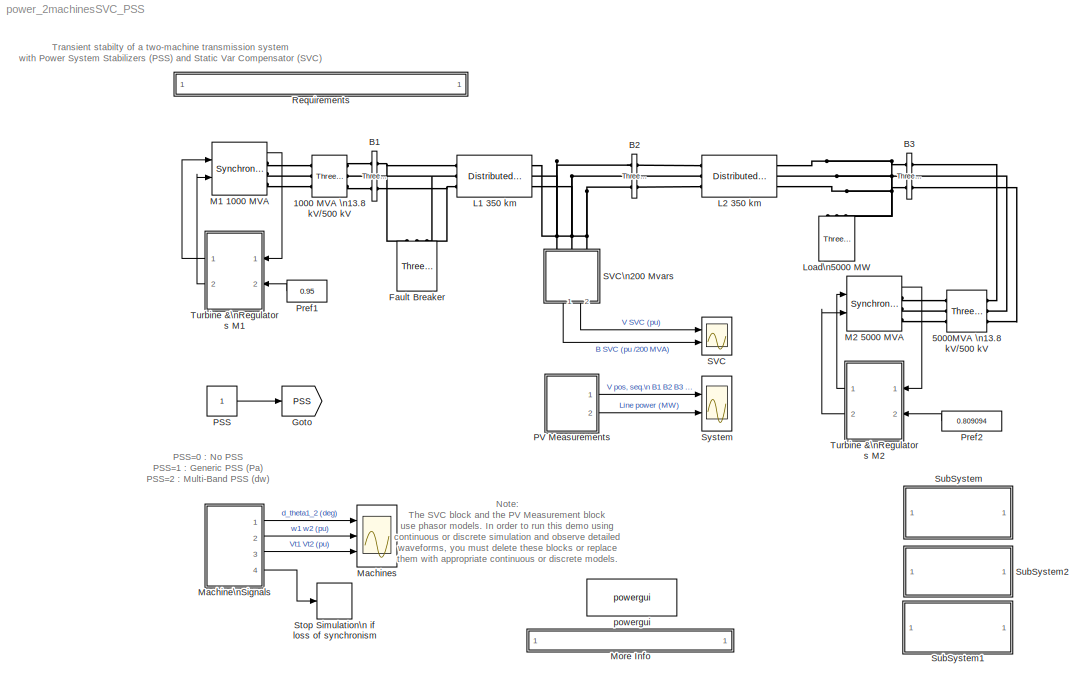
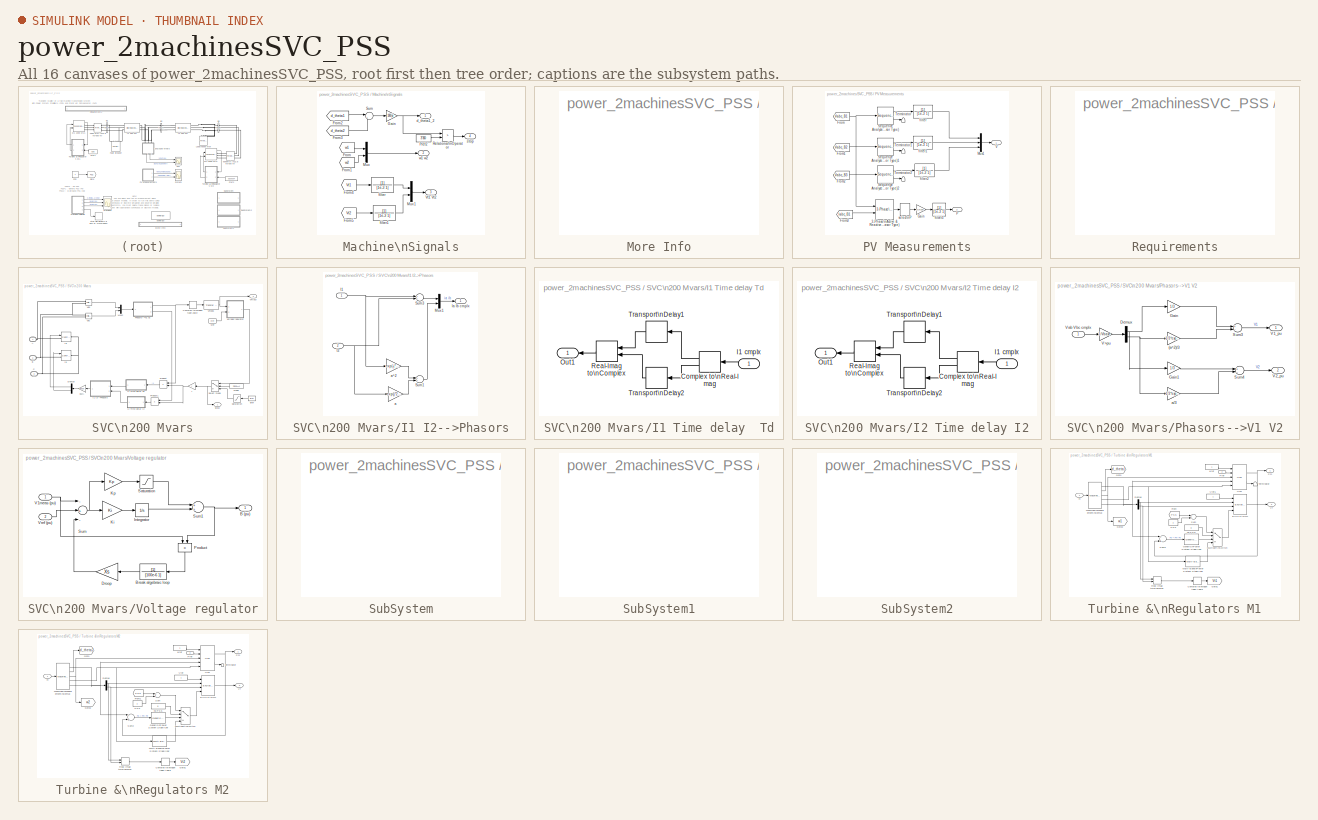
[diagram: thumbnail index - all 16 canvases of the model, root first then tree order]
MODEL power_2machinesSVC_PSS
KIND model
BLOCK [Reference] 1000 MVA \n13.8 kV//500 kV  REF=powerlib/Elements/Three-Phase\nTransformer\n(Two Windings)
  AttributesFormatString = \\n
  DataFile = 'hysteresis'
  Hysteresis = off
  InitialFluxes = [ 0.8 , -0.8 , 0.7 ]
  Lm = 500
  Measurements = None
  NominalPower = [ 1000e6 60 ]
  Ports = [0, 0, 0, 0, 0, 3, 3]
  Rm = 500
  Saturation = [ 0,0  ;  0.005,1.2  ;  1.0,1.4 ]
  SetInitialFlux = off
  SetSaturation = off
  ShowPortLabels = on
  SourceBlock = powerlib/Elements/Three-Phase\nTransformer\n(Two Windings)
  SourceType = Three-Phase Transformer (Two Windings)
  TransfoNumber = 0
  Winding1 = [ 13.8e3 0.002  0.0]
  Winding1Connection = Delta (D1)
  Winding2 = [ 500e3 0.002 0.12]
  Winding2Connection = Yg
BLOCK [Reference] 5000MVA \n13.8 kV//500 kV  REF=powerlib/Elements/Three-Phase\nTransformer\n(Two Windings)
  AttributesFormatString = \\n
  DataFile = 'hysteresis'
  Hysteresis = off
  InitialFluxes = [ 0.8 , -0.8 , 0.7 ]
  Lm = 500
  Measurements = None
  NominalPower = [ 5000e6 60 ]
  Ports = [0, 0, 0, 0, 0, 3, 3]
  Rm = 500
  Saturation = [ 0,0  ;  0.005,1.2  ;  1.0,1.4 ]
  SetInitialFlux = off
  SetSaturation = off
  ShowPortLabels = on
  SourceBlock = powerlib/Elements/Three-Phase\nTransformer\n(Two Windings)
  SourceType = Three-Phase Transformer (Two Windings)
  TransfoNumber = 0
  Winding1 = [ 13.8e3 0.002  0.0]
  Winding1Connection = Delta (D1)
  Winding2 = [ 500e3 0.002 0.12]
  Winding2Connection = Yg
BLOCK [Reference] B1  REF=powerlib/Measurements/Three-Phase\nV-I Measurement
  CurrentMeasurement = yes
  Ipu = on
  LabelI = Iabc_B1
  LabelV = Vabc_B1
  OutputType = Complex
  PSBequivalent = 0
  Pbase = 100e6
  PhasorSimulation = on
  Ports = [0, 0, 0, 0, 0, 3, 3]
  SetLabelI = on
  SetLabelV = on
  ShowPortLabels = on
  SourceBlock = powerlib/Measurements/Three-Phase\nV-I Measurement
  SourceType = Three-Phase VI Measurement
  Vbase = 500e3
  VoltageMeasurement = phase-to-ground
  Vpu = on
BLOCK [Reference] B2  REF=powerlib/Measurements/Three-Phase\nV-I Measurement
  CurrentMeasurement = no
  Ipu = on
  LabelI = Iabc_B2
  LabelV = Vabc_B2
  OutputType = Complex
  PSBequivalent = 0
  Pbase = 100e6
  PhasorSimulation = on
  Ports = [0, 0, 0, 0, 0, 3, 3]
  SetLabelI = on
  SetLabelV = on
  ShowPortLabels = on
  SourceBlock = powerlib/Measurements/Three-Phase\nV-I Measurement
  SourceType = Three-Phase VI Measurement
  Vbase = 500e3
  VoltageMeasurement = phase-to-ground
  Vpu = on
BLOCK [Reference] B3  REF=powerlib/Measurements/Three-Phase\nV-I Measurement
  CurrentMeasurement = no
  Ipu = off
  LabelI = I1
  LabelV = Vabc_B3
  OutputType = Complex
  PSBequivalent = 0
  Pbase = 0
  PhasorSimulation = on
  Ports = [0, 0, 0, 0, 0, 3, 3]
  SetLabelI = off
  SetLabelV = on
  ShowPortLabels = on
  SourceBlock = powerlib/Measurements/Three-Phase\nV-I Measurement
  SourceType = Three-Phase VI Measurement
  Vbase = 500e3
  VoltageMeasurement = phase-to-ground
  Vpu = on
BLOCK [Reference] Fault Breaker  REF=powerlib/Elements/Three-Phase Fault
  External = off
  FaultA = on
  FaultB = off
  FaultC = off
  FaultResistance = 0.001
  GroundFault = on
  GroundResistance = 0.001
  InitialStates = [0 0 1]
  Measurements = None
  Ports = [0, 0, 0, 0, 0, 3]
  ShowPortLabels = on
  SnubberCapacitance = inf
  SnubberResistance = 1e6
  SourceBlock = powerlib/Elements/Three-Phase Fault
  SourceType = Three-Phase Fault
  SwitchStatus = [1 0]
  SwitchTimes = [ 0.1 0.2]
BLOCK [Goto] Goto
  DialogController = Simulink.DDGSource
  GotoTag = PSS
  TagVisibility = global
BLOCK [Reference] L1 350 km  REF=powerlib/Elements/Distributed Parameters Line
  AttributesFormatString = \\n
  Capacitance = [13.33e-9  8.297e-9]
  Frequency = 60
  Inductance = [0.8737e-3  3.220e-3]
  Length = 350
  Measurements = None
  Phases = 3
  Ports = [0, 0, 0, 0, 0, 3, 3]
  Resistance = [0.01755  0.2758]
  ShowPortLabels = on
  SourceBlock = powerlib/Elements/Distributed Parameters Line
  SourceType = Distributed Parameters Line
  x1 = [0 -2.08119625850685e-008 487443.70964158 -112421.385718226;0.000361814960995258 -1.32408804911861e-008 498203.083338567 -45095.3864412803;0.000723629921990516 -5.4238303493389e-009 499707.631423288 23068.3233023193;0.00108544488298577 2.49397509835117e-009 491929.404791019 90803.5063738243;0.00144725984398103 1.03654514377148e-008 475012.894982382 156851.886122394;0.00180907480497629 1.8044374883...<+44ch>
  x2 = [0 -2.35529805500378e-008 400923.037995999 -306678.651465529;0.000361814960995258 -1.81656675870373e-008 438900.84018104 -249313.294277769;0.000723629921990516 -1.2440901703188e-008 468725.439640532 -187316.590680232;0.00108544488298577 -6.48502850673286e-009 489842.802334574 -121840.216966217;0.00144725984398103 -4.08686750512464e-010 501860.643438643 -54100.489213872;0.00180907480497629 5.675246...<+48ch>
  x3 = [0 -2.28639731612497e-011 13.1153359399388 -184.480419316447;0.000361814960995258 -1.5497855368557e-011 38.0787449775036 -180.983668896994;0.000723629921990516 -7.84384303326341e-012 62.3347875693628 -174.124891323704;0.00108544488298577 -4.41202400649915e-014 85.4328734808534 -164.031498072894;0.00144725984398103 7.75642214887949e-012 106.943923157398 -150.890988173566;0.00180907480497629 1.54128...<+50ch>
  x4 = [0 -8.91581395814244e-011 3023.50620810601 -2208.10451815775;0.000361814960995258 -8.08885983149858e-011 3295.677846705 -1776.46366568912;0.000723629921990516 -7.11164371401972e-011 3506.62761662129 -1311.82249270399;0.00108544488298577 -6.00231877467494e-011 3652.43682806992 -822.812364948711;0.00144725984398103 -4.7814922903044e-011 3730.39686910176 -318.517335907422;0.00180907480497629 -3.47184...<+49ch>
  x5 = 0.00180907480497629
BLOCK [Reference] L2 350 km  REF=powerlib/Elements/Distributed Parameters Line
  AttributesFormatString = \\n
  Capacitance = [13.33e-9  8.297e-9]
  Frequency = 60
  Inductance = [0.8737e-3  3.220e-3]
  Length = 350
  Measurements = None
  Phases = 3
  Ports = [0, 0, 0, 0, 0, 3, 3]
  Resistance = [0.01755  0.2758]
  ShowPortLabels = on
  SourceBlock = powerlib/Elements/Distributed Parameters Line
  SourceType = Distributed Parameters Line
  x1 = [0 -2.35529805500378e-008 400923.037995999 -306678.651465529;0.000361814960995258 -1.81656675870373e-008 438900.84018104 -249313.294277769;0.000723629921990516 -1.2440901703188e-008 468725.439640532 -187316.590680232;0.00108544488298577 -6.48502850673286e-009 489842.802334574 -121840.216966217;0.00144725984398103 -4.08686750512464e-010 501860.643438643 -54100.489213872;0.00180907480497629 5.675246...<+48ch>
  x2 = [0 -1.22208025570452e-008 237673.529594385 -435607.401325092;0.000361814960995258 -1.12033805949038e-008 294699.1687201 -399242.932774381;0.000723629921990516 -9.97784002181595e-009 346250.354744666 -355461.963115335;0.00108544488298577 -8.56694698408616e-009 391369.451610182 -305077.785667245;0.00144725984398103 -6.9969108117215e-009 429218.308395391 -249026.357656179;0.00180907480497629 -5.29689...<+50ch>
  x3 = [0 2.19231358823738e-011 52.7160632692662 -144.994726298769;0.000361814960995258 2.8947525098237e-011 71.9423984147416 -136.479806556214;0.000723629921990516 3.54341731686708e-011 89.8323019448307 -125.429581731223;0.00108544488298577 4.12625814482279e-011 106.053443645353 -112.049325350098;0.00144725984398103 4.63244790248479e-011 120.30449290899 -96.5875945647238;0.00180907480497629 5.0525834004...<+45ch>
  x4 = [0 -9.73737691565742e-011 1740.3123490764 -3266.29894983194;0.000361814960995258 -9.76379763309758e-011 2168.29428893824 -2999.31609805074;0.000723629921990516 -9.60884202544106e-011 2555.99710128903 -2676.61671545742;0.00108544488298577 -9.275388611859e-011 2896.21865904908 -2304.19539865519;0.00144725984398103 -8.76963176026223e-011 3182.63886647449 -1888.97039937023;0.00180907480497629 -8.10096...<+50ch>
  x5 = 0.00180907480497629
BLOCK [Reference] Load\n5000 MW  REF=powerlib/Elements/Three-Phase\nParallel RLC Load
  ActivePower = 5000e6
  AttributesFormatString = \\n
  CapacitivePower = 0
  Configuration = Y (grounded)
  InductivePower = 0
  LConnTagsString = A|B|C
  LeftPortType = p1
  Measurements = None
  NominalFrequency = 60
  NominalVoltage = 500e3
  PhysicalDomain = powersysdomain
  Ports = [0, 0, 0, 0, 0, 3]
  RightPortType = p1
  SourceBlock = powerlib/Elements/Three-Phase\nParallel RLC Load
  SourceType = Three-Phase Parallel RLC Load
  SubClassName = unknown
BLOCK [Reference] M1 1000 MVA  REF=powerlib/Machines/Synchronous Machine\npu Standard
  AttributesFormatString = \\n\\n
  InitialConditions = [0 -16.6861 0.950218 0.950218 0.950218 48.1093 -71.8907 168.109 1.44424]
  LoadFlowParameters = [1 950000000 0 0]
  Mechanical = [ 3.7 0  32]
  NominalParameters = [1000E6  13800   60 ]
  Ports = [2, 1, 0, 0, 0, 0, 3]
  PresetModel = No
  Reactances1 = [ 31 32 33 34 35 36 37 ]
  Reactances2 = [ 1.305, 0.296, 0.252, 0.474, 0.243, 0.18 ]
  RotorType = Salient-pole
  Saturation = [0.6404,0.7127,0.8441,0.9214,0.9956,1.082,1.19,1.316,1.457;0.7,0.7698,0.8872,0.9466,0.9969,1.046,1.1,1.151,1.201]
  SetSaturation = off
  ShowDetailedParameters = on
  ShowPortLabels = on
  SourceBlock = powerlib/Machines/Synchronous Machine\npu Standard
  SourceType = Synchronous Machine
  StatorResistance = 2.8544e-3
  TimeConstants1 = []
  TimeConstants2 = []
  TimeConstants3 = []
  TimeConstants4 = []
  TimeConstants5 = [ 1.01, 0.053, 0.1 ]
  TimeConstants6 = []
  TimeConstants7 = []
  TimeConstants8 = []
  Units = 0.5
  dAxisTimeConstants = Short-circuit
  qAxisTimeConstants = Open-circuit
BLOCK [Reference] M2 5000 MVA  REF=powerlib/Machines/Synchronous Machine\npu Standard
  AttributesFormatString = \\n\\n
  InitialConditions = [0 -69.7487 0.812764 0.812764 0.812764 -5.44703 -125.447 114.553 1.40021]
  LoadFlowParameters = [2 4000000000 0 0]
  Mechanical = [ 3.7 0  32]
  NominalParameters = [5000E6  13800   60 ]
  Ports = [2, 1, 0, 0, 0, 0, 3]
  PresetModel = No
  Reactances1 = [ 31 32 33 34 35 36 37 ]
  Reactances2 = [ 1.305, 0.296, 0.252, 0.474, 0.243, 0.18 ]
  RotorType = Salient-pole
  Saturation = [0.6404,0.7127,0.8441,0.9214,0.9956,1.082,1.19,1.316,1.457;0.7,0.7698,0.8872,0.9466,0.9969,1.046,1.1,1.151,1.201]
  SetSaturation = off
  ShowDetailedParameters = on
  ShowPortLabels = on
  SourceBlock = powerlib/Machines/Synchronous Machine\npu Standard
  SourceType = Synchronous Machine
  StatorResistance = 2.8544e-3
  TimeConstants1 = []
  TimeConstants2 = []
  TimeConstants3 = []
  TimeConstants4 = []
  TimeConstants5 = [ 1.01, 0.053, 0.1 ]
  TimeConstants6 = []
  TimeConstants7 = []
  TimeConstants8 = []
  Units = 0.5
  dAxisTimeConstants = Short-circuit
  qAxisTimeConstants = Open-circuit
BLOCK [SubSystem] Machine\nSignals
  MinAlgLoopOccurrences = off
  Ports = [0, 4]
  RTWSystemCode = Auto
  TreatAsAtomicUnit = off
BLOCK [TransferFcn] Machine\nSignals/ filter
  Denominator = [1e-3 1]
BLOCK [TransferFcn] Machine\nSignals/ filter1
  Denominator = [1e-3 1]
BLOCK [From] Machine\nSignals/From
  CloseFcn = tagdialog Close
  DialogController = Simulink.DDGSource
  GotoTag = w1
BLOCK [From] Machine\nSignals/From1
  CloseFcn = tagdialog Close
  DialogController = Simulink.DDGSource
  GotoTag = w2
BLOCK [From] Machine\nSignals/From2
  CloseFcn = tagdialog Close
  DialogController = Simulink.DDGSource
  GotoTag = d_theta1
BLOCK [From] Machine\nSignals/From3
  CloseFcn = tagdialog Close
  DialogController = Simulink.DDGSource
  GotoTag = d_theta2
BLOCK [From] Machine\nSignals/From4
  CloseFcn = tagdialog Close
  DialogController = Simulink.DDGSource
  GotoTag = Vt1
BLOCK [From] Machine\nSignals/From5
  CloseFcn = tagdialog Close
  DialogController = Simulink.DDGSource
  GotoTag = Vt2
BLOCK [Gain] Machine\nSignals/Gain
  Gain = 180/pi
BLOCK [Mux] Machine\nSignals/Mux
  DisplayOption = bar
  Inputs = 2
  Ports = [2, 1]
BLOCK [Mux] Machine\nSignals/Mux1
  DisplayOption = bar
  Inputs = 2
  Ports = [2, 1]
BLOCK [Constant] Machine\nSignals/Pref2
  Value = 3*360
BLOCK [RelationalOperator] Machine\nSignals/Relational\nOperator
  Operator = >
BLOCK [Sum] Machine\nSignals/Sum
  IconShape = round
  Inputs = |+-
  Ports = [2, 1]
BLOCK [Outport] Machine\nSignals/Vt1 Vt2
  IconDisplay = Port number
  Port = 3
BLOCK [Outport] Machine\nSignals/d_theta1_2
  IconDisplay = Port number
BLOCK [Outport] Machine\nSignals/stop
  IconDisplay = Port number
  Port = 4
BLOCK [Outport] Machine\nSignals/w1 w2
  IconDisplay = Port number
  Port = 2
BLOCK [Scope] Machines
  DataFormat = StructureWithTime
  LimitDataPoints = off
  NumInputPorts = 3
  Ports = [3]
  SaveName = mach
  SaveToWorkspace = on
  TimeRange = 50
  YMax = 70~1.005~1.5
  YMin = 30~0.995~0
BLOCK [SubSystem] More Info
  MaskDisplay = disp('? : Double click here for more info')
  MaskIconFrame = off
  MaskIconOpaque = on
  MaskIconRotate = none
  MaskIconUnits = autoscale
  MinAlgLoopOccurrences = off
  OpenFcn = web(which('psb2machines.html'));
  Ports = []
  RTWSystemCode = Auto
  TreatAsAtomicUnit = off
BLOCK [Constant] PSS
BLOCK [SubSystem] PV Measurements
  MinAlgLoopOccurrences = off
  Ports = [0, 2]
  RTWSystemCode = Auto
  TreatAsAtomicUnit = off
BLOCK [TransferFcn] PV Measurements/ filter
  Denominator = [1e-3 1]
BLOCK [TransferFcn] PV Measurements/ filter1
  Denominator = [1e-3 1]
BLOCK [TransferFcn] PV Measurements/ filter2
  Denominator = [1e-3 1]
BLOCK [TransferFcn] PV Measurements/ filter3
  Denominator = [1e-3 1]
BLOCK [Reference] PV Measurements/3-Phase\nActive & Reactive Power\n(Phasor Type)  REF=powerlib_extras/Phasor\nLibrary/3-Phase\nActive & Reactive Power\n(Phasor Type)
  Ports = [2, 1]
  ShowPortLabels = on
  SourceBlock = powerlib_extras/Phasor\nLibrary/3-Phase\nActive & Reactive Power\n(Phasor Type)
  SourceType = 3-Phase Active & Reactive Power (Phasor Type)
BLOCK [From] PV Measurements/From
  CloseFcn = tagdialog Close
  DialogController = Simulink.DDGSource
  GotoTag = Vabc_B1
BLOCK [From] PV Measurements/From1
  CloseFcn = tagdialog Close
  DialogController = Simulink.DDGSource
  GotoTag = Vabc_B2
BLOCK [From] PV Measurements/From2
  CloseFcn = tagdialog Close
  DialogController = Simulink.DDGSource
  GotoTag = Vabc_B3
BLOCK [From] PV Measurements/From3
  CloseFcn = tagdialog Close
  DialogController = Simulink.DDGSource
  GotoTag = Iabc_B1
BLOCK [Gain] PV Measurements/Gain
  Gain = 2/3*100
BLOCK [Mux] PV Measurements/Mux1
  DisplayOption = bar
  Inputs = 3
  Ports = [3, 1]
BLOCK [Outport] PV Measurements/P
  IconDisplay = Port number
  Port = 2
BLOCK [Reference] PV Measurements/Sequence Analyzer\n(Phasor Type)  REF=powerlib_extras/Phasor\nLibrary/Sequence Analyzer\n(Phasor Type)
  Ports = [1, 2]
  ShowPortLabels = on
  SourceBlock = powerlib_extras/Phasor\nLibrary/Sequence Analyzer\n(Phasor Type)
  SourceType = Sequence Analyzer (Phasor Type)
  seq = Positive
BLOCK [Reference] PV Measurements/Sequence Analyzer\n(Phasor Type)1  REF=powerlib_extras/Phasor\nLibrary/Sequence Analyzer\n(Phasor Type)
  Ports = [1, 2]
  ShowPortLabels = on
  SourceBlock = powerlib_extras/Phasor\nLibrary/Sequence Analyzer\n(Phasor Type)
  SourceType = Sequence Analyzer (Phasor Type)
  seq = Positive
BLOCK [Reference] PV Measurements/Sequence Analyzer\n(Phasor Type)2  REF=powerlib_extras/Phasor\nLibrary/Sequence Analyzer\n(Phasor Type)
  Ports = [1, 2]
  ShowPortLabels = on
  SourceBlock = powerlib_extras/Phasor\nLibrary/Sequence Analyzer\n(Phasor Type)
  SourceType = Sequence Analyzer (Phasor Type)
  seq = Positive
BLOCK [Terminator] PV Measurements/Terminator
BLOCK [Terminator] PV Measurements/Terminator1
BLOCK [Terminator] PV Measurements/Terminator2
BLOCK [Outport] PV Measurements/V
  IconDisplay = Port number
BLOCK [Selector] PV Measurements/select\nP
  InputPortWidth = 2
  Ports = [1, 1]
BLOCK [Constant] Pref1 
  Value = 0.95
BLOCK [Constant] Pref2
  Value = 0.809094
BLOCK [SubSystem] Requirements
  Description = This block is used to popup errors and warnings if the\nControl System Toolbox is not installed.
  InitFcn = Toolboxes = ver;                                                                                               \ninstalledtoolboxes = {Toolboxes.Name};                                                                         \nk = strcmp('Control System Toolbox',installedtoolboxes);                                                       \nif ~any(k)                                                   ...<+391ch>
  LoadFcn = Toolboxes = ver;                                                                                                                              \ninstalledtoolboxes = {Toolboxes.Name};                                                                                                        \nk = strcmp('Control System Toolbox',installedtoolboxes);                                                        ...<+467ch>
  MaskDisplay = disp('This demo requires the Control System Toolbox')
  MaskIconFrame = off
  MaskIconOpaque = on
  MaskIconRotate = none
  MaskIconUnits = autoscale
  MinAlgLoopOccurrences = off
  OpenFcn = Toolboxes = ver;                                                                                                                                           \ninstalledtoolboxes = {Toolboxes.Name};                                                                                                                     \nk = strcmp('Control System Toolbox',installedtoolboxes);                              ...<+540ch>
  Ports = []
  RTWSystemCode = Auto
  TreatAsAtomicUnit = off
BLOCK [Scope] SVC
  DataFormat = StructureWithTime
  LimitDataPoints = off
  NumInputPorts = 2
  Ports = [2]
  SaveName = svc
  SaveToWorkspace = on
  TimeRange = 10
  YMax = 1.1~1
  YMin = 0.5~-1
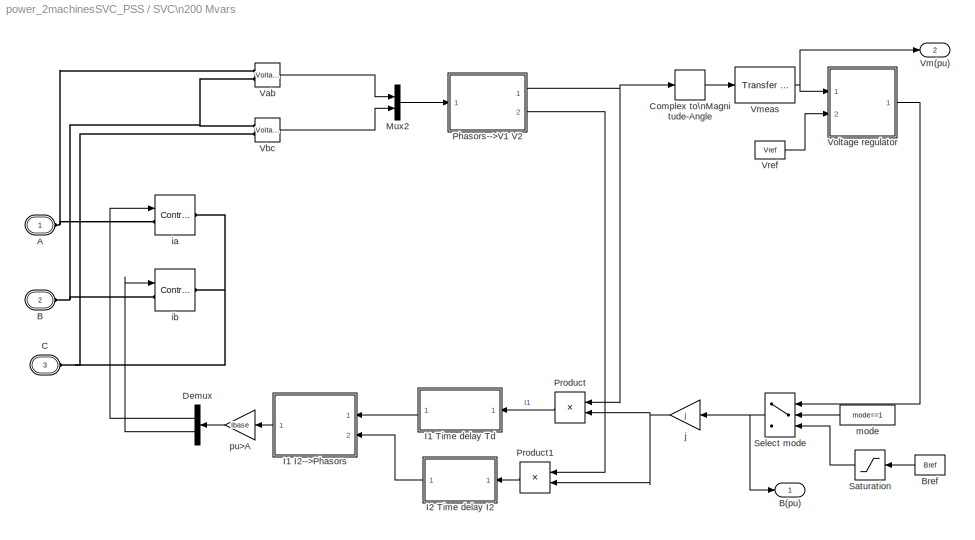
BLOCK [SubSystem] SVC\n200 Mvars
  AncestorBlock = powerlib/Phasor\nElements/Static Var Compensator
  CloseFcn = %3phaseVImeasurement
  LoadFcn = find_system(gcs,'FollowLinks', 'on', 'LookUnderMasks', 'all');
  MaskCallbackString = powericon('psbcallbacks',gcb,'SVCblock');|||||||||
  MaskDescription = This block implements a  phasor model of a three-phase, three-wire Static Var Compensator (SVC).\n\nThe B output signal (SVC susceptance in pu/Pbase)  is the output of the voltage regulator or the reference susceptance Bref in var control mode.\nThe Vm output is the measured positive-sequence voltage (pu).
  MaskDisplay = \n
  MaskEnableString = on,on,on,on,on,on,on,on,on,on
  MaskHelp = web(psbhelp)
  MaskIconFrame = on
  MaskIconOpaque = on
  MaskIconRotate = none
  MaskIconUnits = autoscale
  MaskInitialization = Qc_nom=Qnom(1);\nQl_nom=Qnom(2);\nBmax=Qc_nom/Pbase;\nBmin=Ql_nom/Pbase;\nVbase=Vnom/sqrt(3)*sqrt(2);\nIbase=Pbase/Vnom/sqrt(3)*sqrt(2);\nKp=Kp_Ki(1);\nKi=Kp_Ki(2);;
  MaskPromptString = Mode of operation|Nominal voltage (Vrms Ph-Ph):|Reactive power limits [Qc(var>0)  Ql(var<0)]:|Three-phase base power Pbase (VA):|Reference voltage Vref  (pu):|Droop Xs (pu/Pbase):|Voltage regulator [Kp(puB/puV)  Ki(puB/puV/s)]: |Bref  for var control mode (pu/Pbase):|Time constant of voltage measurement system Tm (s):|Average time delay due to thyristor valves firing Td (s):
  MaskStyleString = popup(Voltage regulation|Var control (Fixed susceptance Bref)),edit,edit,edit,edit,edit,edit,edit,edit,edit
  MaskTabNameString = ,,,,,,,,,
  MaskToolTipString = on,on,on,on,on,on,on,on,on,on
  MaskTunableValueString = on,on,on,on,on,on,on,on,on,on
  MaskType = Static Var Compensator (Phasor Type)
  MaskValueString = Var control (Fixed susceptance Bref)|500e3|[200e6 -200e6]|200e6|1.009|0.03|[0  333]|0.0|8e-3|4e-3
  MaskVarAliasString = ,,,,,,,,,
  MaskVariables = mode=@1;Vnom=@2;Qnom=@3;Pbase=@4;Vref=@5;Xs=@6;Kp_Ki=@7;Bref=@8;Tm=@9;Td=@10;
  MaskVisibilityString = on,on,on,on,off,off,off,on,off,on
  MinAlgLoopOccurrences = off
  Ports = [0, 2, 0, 0, 0, 3]
  RTWSystemCode = Auto
  TreatAsAtomicUnit = off
BLOCK [PMIOPort] SVC\n200 Mvars/A
  Port = 1
  Side = Left
BLOCK [PMIOPort] SVC\n200 Mvars/B
  Port = 2
  Side = Left
BLOCK [Outport] SVC\n200 Mvars/B(pu)
  IconDisplay = Port number
BLOCK [Constant] SVC\n200 Mvars/Bref
  Value = Bref
BLOCK [PMIOPort] SVC\n200 Mvars/C
  Port = 3
  Side = Left
BLOCK [ComplexToMagnitudeAngle] SVC\n200 Mvars/Complex to\nMagnitude-Angle
  Output = Magnitude
  Ports = [1, 1]
BLOCK [Demux] SVC\n200 Mvars/Demux
  Outputs = 2
  Ports = [1, 2]
BLOCK [SubSystem] SVC\n200 Mvars/I1 I2-->Phasors
  MinAlgLoopOccurrences = off
  Ports = [2, 1]
  RTWSystemCode = Auto
  TreatAsAtomicUnit = off
BLOCK [Inport] SVC\n200 Mvars/I1 I2-->Phasors/I1
  IconDisplay = Port number
  LatchInput = off
  Port = 1
BLOCK [Inport] SVC\n200 Mvars/I1 I2-->Phasors/I2
  IconDisplay = Port number
  LatchInput = off
  Port = 2
BLOCK [Outport] SVC\n200 Mvars/I1 I2-->Phasors/Ia Ib cmplx
  IconDisplay = Port number
BLOCK [Mux] SVC\n200 Mvars/I1 I2-->Phasors/Mux1
  DisplayOption = bar
  Inputs = 2
  Ports = [2, 1]
BLOCK [Sum] SVC\n200 Mvars/I1 I2-->Phasors/Sum1
  Ports = [2, 1]
BLOCK [Sum] SVC\n200 Mvars/I1 I2-->Phasors/Sum3
  Ports = [2, 1]
BLOCK [Gain] SVC\n200 Mvars/I1 I2-->Phasors/a
  Gain = exp(j*2*pi/3)
BLOCK [Gain] SVC\n200 Mvars/I1 I2-->Phasors/a^2
  Gain = exp(-j*2*pi/3)
BLOCK [SubSystem] SVC\n200 Mvars/I1 Time delay  Td
  MinAlgLoopOccurrences = off
  Ports = [1, 1]
  RTWSystemCode = Auto
  TreatAsAtomicUnit = off
BLOCK [ComplexToRealImag] SVC\n200 Mvars/I1 Time delay  Td/Complex to\nReal-Imag
  Output = Real and imag
  Ports = [1, 2]
BLOCK [Inport] SVC\n200 Mvars/I1 Time delay  Td/I1 cmplx
  IconDisplay = Port number
  LatchInput = off
  Port = 1
BLOCK [Outport] SVC\n200 Mvars/I1 Time delay  Td/Out1
  IconDisplay = Port number
BLOCK [RealImagToComplex] SVC\n200 Mvars/I1 Time delay  Td/Real-Imag to\nComplex
  Input = Real and imag
  Ports = [2, 1]
BLOCK [TransportDelay] SVC\n200 Mvars/I1 Time delay  Td/Transport\nDelay1
  DelayTime = Td
BLOCK [TransportDelay] SVC\n200 Mvars/I1 Time delay  Td/Transport\nDelay2
  DelayTime = Td
BLOCK [SubSystem] SVC\n200 Mvars/I2 Time delay I2
  MinAlgLoopOccurrences = off
  Ports = [1, 1]
  RTWSystemCode = Auto
  TreatAsAtomicUnit = off
BLOCK [ComplexToRealImag] SVC\n200 Mvars/I2 Time delay I2/Complex to\nReal-Imag
  Output = Real and imag
  Ports = [1, 2]
BLOCK [Inport] SVC\n200 Mvars/I2 Time delay I2/I1 cmplx
  IconDisplay = Port number
  LatchInput = off
  Port = 1
BLOCK [Outport] SVC\n200 Mvars/I2 Time delay I2/Out1
  IconDisplay = Port number
BLOCK [RealImagToComplex] SVC\n200 Mvars/I2 Time delay I2/Real-Imag to\nComplex
  Input = Real and imag
  Ports = [2, 1]
BLOCK [TransportDelay] SVC\n200 Mvars/I2 Time delay I2/Transport\nDelay1
  DelayTime = Td
BLOCK [TransportDelay] SVC\n200 Mvars/I2 Time delay I2/Transport\nDelay2
  DelayTime = Td
BLOCK [Mux] SVC\n200 Mvars/Mux2
  DisplayOption = bar
  Inputs = 2
  Ports = [2, 1]
BLOCK [SubSystem] SVC\n200 Mvars/Phasors-->V1 V2
  MinAlgLoopOccurrences = off
  Ports = [1, 2]
  RTWSystemCode = Auto
  TreatAsAtomicUnit = off
BLOCK [Gain] SVC\n200 Mvars/Phasors-->V1 V2/(a^2)//3
  Gain = 1/3*exp(-j*2*pi/3)
BLOCK [Demux] SVC\n200 Mvars/Phasors-->V1 V2/Demux
  Outputs = 2
  Ports = [1, 2]
BLOCK [Gain] SVC\n200 Mvars/Phasors-->V1 V2/Gain
  Gain = 1/3
BLOCK [Gain] SVC\n200 Mvars/Phasors-->V1 V2/Gain1
  Gain = 1/3
BLOCK [Sum] SVC\n200 Mvars/Phasors-->V1 V2/Sum3
  Inputs = +-
  Ports = [2, 1]
BLOCK [Sum] SVC\n200 Mvars/Phasors-->V1 V2/Sum4
  Inputs = +-
  Ports = [2, 1]
BLOCK [Outport] SVC\n200 Mvars/Phasors-->V1 V2/V1_pu
  IconDisplay = Port number
BLOCK [Outport] SVC\n200 Mvars/Phasors-->V1 V2/V2_pu
  IconDisplay = Port number
  Port = 2
BLOCK [Gain] SVC\n200 Mvars/Phasors-->V1 V2/V>pu
  Gain = 1/Vbase
BLOCK [Inport] SVC\n200 Mvars/Phasors-->V1 V2/Vab Vbc cmplx
  IconDisplay = Port number
  LatchInput = off
  Port = 1
BLOCK [Gain] SVC\n200 Mvars/Phasors-->V1 V2/a//3
  Gain = 1/3*exp(j*2*pi/3)
BLOCK [Product] SVC\n200 Mvars/Product
  Ports = [2, 1]
  RndMeth = Floor
BLOCK [Product] SVC\n200 Mvars/Product1
  Ports = [2, 1]
  RndMeth = Floor
BLOCK [Saturate] SVC\n200 Mvars/Saturation
  LowerLimit = Bmin
  UpperLimit = Bmax
BLOCK [Switch] SVC\n200 Mvars/Select mode
  SaturateOnIntegerOverflow = off
  Threshold = 0.5
BLOCK [Reference] SVC\n200 Mvars/Vab  REF=powerlib/Measurements/Voltage Measurement
  OutputType = Complex
  PSBequivalent = 0
  PhasorSimulation = on
  Ports = [0, 1, 0, 0, 0, 2]
  ShowPortLabels = on
  SourceBlock = powerlib/Measurements/Voltage Measurement
  SourceType = Voltage Measurement
BLOCK [Reference] SVC\n200 Mvars/Vbc  REF=powerlib/Measurements/Voltage Measurement
  OutputType = Complex
  PSBequivalent = 0
  PhasorSimulation = on
  Ports = [0, 1, 0, 0, 0, 2]
  ShowPortLabels = on
  SourceBlock = powerlib/Measurements/Voltage Measurement
  SourceType = Voltage Measurement
BLOCK [Outport] SVC\n200 Mvars/Vm(pu)
  IconDisplay = Port number
  Port = 2
BLOCK [Reference] SVC\n200 Mvars/Vmeas  REF=simulink_extras/Additional\nLinear/Transfer Fcn\n(with initial outputs)
  D = [Tm  1]
  N = [1]
  Ports = [1, 1]
  ShowPortLabels = on
  SourceBlock = simulink_extras/Additional\nLinear/Transfer Fcn\n(with initial outputs)
  SourceType = Transfer Function with Initial Outputs
  U0 = Vref
  Y0 = Vref
BLOCK [SubSystem] SVC\n200 Mvars/Voltage regulator
  MinAlgLoopOccurrences = off
  Ports = [2, 1]
  RTWSystemCode = Auto
  TreatAsAtomicUnit = off
BLOCK [Outport] SVC\n200 Mvars/Voltage regulator/B (pu)
  IconDisplay = Port number
  InitialOutput = 0
BLOCK [TransferFcn] SVC\n200 Mvars/Voltage regulator/Break algebraic loop
  Denominator = [100e-6 1]
BLOCK [Gain] SVC\n200 Mvars/Voltage regulator/Droop
  Gain = Xs
BLOCK [Integrator] SVC\n200 Mvars/Voltage regulator/Integrator
  LimitOutput = on
  LowerSaturationLimit = Bmin
  Ports = [1, 1]
  UpperSaturationLimit = Bmax
BLOCK [Gain] SVC\n200 Mvars/Voltage regulator/Ki
  Gain = Ki
BLOCK [Gain] SVC\n200 Mvars/Voltage regulator/Kp
  Gain = Kp
BLOCK [Product] SVC\n200 Mvars/Voltage regulator/Product
  Ports = [2, 1]
  RndMeth = Floor
BLOCK [Saturate] SVC\n200 Mvars/Voltage regulator/Saturation
  LowerLimit = Bmin
  UpperLimit = Bmax
BLOCK [Sum] SVC\n200 Mvars/Voltage regulator/Sum
  Inputs = -+-
  Ports = [3, 1]
BLOCK [Sum] SVC\n200 Mvars/Voltage regulator/Sum1
  InputSameDT = off
  OutDataTypeMode = Inherit via internal rule
  Ports = [2, 1]
BLOCK [Inport] SVC\n200 Mvars/Voltage regulator/V1meas (pu)
  IconDisplay = Port number
  LatchInput = off
  Port = 1
BLOCK [Inport] SVC\n200 Mvars/Voltage regulator/Vref (pu)
  IconDisplay = Port number
  LatchInput = off
  Port = 2
BLOCK [Constant] SVC\n200 Mvars/Vref
  Value = Vref
BLOCK [Reference] SVC\n200 Mvars/ia  REF=powerlib/Electrical\nSources/Controlled Current Source
  Amplitude = 0
  Description = source block
  Frequency = 0
  Initialize = off
  Measurements = None
  Phase = 0
  Ports = [1, 0, 0, 0, 0, 1, 1]
  ShowPortLabels = on
  SourceBlock = powerlib/Electrical\nSources/Controlled Current Source
  SourceType = AC
BLOCK [Reference] SVC\n200 Mvars/ib  REF=powerlib/Electrical\nSources/Controlled Current Source
  Amplitude = 0
  Description = source block
  Frequency = 0
  Initialize = off
  Measurements = None
  Phase = 0
  Ports = [1, 0, 0, 0, 0, 1, 1]
  ShowPortLabels = on
  SourceBlock = powerlib/Electrical\nSources/Controlled Current Source
  SourceType = AC
BLOCK [Gain] SVC\n200 Mvars/j
  Gain = j
BLOCK [Constant] SVC\n200 Mvars/mode
  Value = mode==1
BLOCK [Gain] SVC\n200 Mvars/pu>A
  Gain = Ibase
BLOCK [Stop] Stop Simulation\n if loss of synchronism
BLOCK [SubSystem] SubSystem
  MaskDisplay = disp('Show comparison\\nDetailed vs Phasor\\n simulation')
  MaskIconFrame = on
  MaskIconOpaque = on
  MaskIconRotate = none
  MaskIconUnits = autoscale
  MinAlgLoopOccurrences = off
  OpenFcn = openfig('psb2macSVC_PhasorVsDet.fig');
  Ports = []
  RTWSystemCode = Auto
  TreatAsAtomicUnit = off
BLOCK [SubSystem] SubSystem1
  MaskDisplay = disp('Show impact of SVC\\nfor 3-phase fault')
  MaskIconFrame = on
  MaskIconOpaque = on
  MaskIconRotate = none
  MaskIconUnits = autoscale
  MinAlgLoopOccurrences = off
  OpenFcn = openfig('psb2macSVC_3phfault.fig');
  Ports = []
  RTWSystemCode = Auto
  TreatAsAtomicUnit = off
BLOCK [SubSystem] SubSystem2
  MaskDisplay = disp('Show impact of PSS\\nfor 1-phase fault')
  MaskIconFrame = on
  MaskIconOpaque = on
  MaskIconRotate = none
  MaskIconUnits = autoscale
  MinAlgLoopOccurrences = off
  OpenFcn = openfig('psb2macSVC_1phfault.fig');
  Ports = []
  RTWSystemCode = Auto
  TreatAsAtomicUnit = off
BLOCK [Scope] System
  DataFormat = StructureWithTime
  LimitDataPoints = off
  NumInputPorts = 2
  Ports = [2]
  SaveName = mach1
  SaveToWorkspace = on
  TimeRange = 50
  YMax = 1.5~1500
  YMin = 0~0
  ZoomMode = yonly
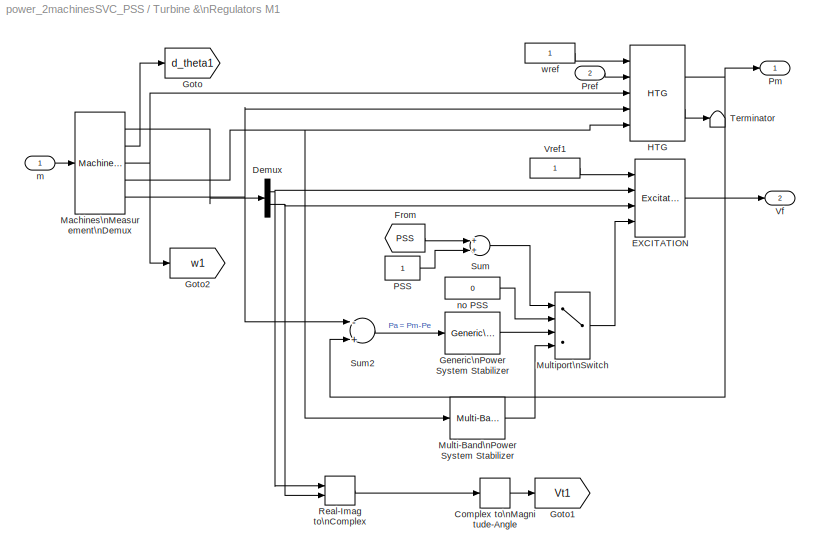
BLOCK [SubSystem] Turbine &\nRegulators M1
  MinAlgLoopOccurrences = off
  Ports = [2, 2]
  RTWSystemCode = Auto
  TreatAsAtomicUnit = off
BLOCK [ComplexToMagnitudeAngle] Turbine &\nRegulators M1/Complex to\nMagnitude-Angle
  Output = Magnitude
  Ports = [1, 1]
BLOCK [Demux] Turbine &\nRegulators M1/Demux
  Outputs = 2
  Ports = [1, 2]
BLOCK [Reference] Turbine &\nRegulators M1/EXCITATION  REF=powerlib2/Machines/Excitation\nSystem
  Ports = [4, 1]
  ShowPortLabels = on
  SourceBlock = powerlib2/Machines/Excitation\nSystem
  SourceType = Excitation System
  damp = [ 0.001, 0.1 ]
  exc = [ 1, 0 ]
  lim = [ 0,  7, 0 ]
  reg = [ 200, 0.001 ]
  sat = [ 0, 0 ]
  tgr = [ 0, 0 ]
  tr = 20e-3
  v0 = [1,1.44424]
BLOCK [From] Turbine &\nRegulators M1/From
  CloseFcn = tagdialog Close
  DialogController = Simulink.DDGSource
  GotoTag = PSS
BLOCK [Reference] Turbine &\nRegulators M1/Generic\nPower System Stabilizer  REF=powerlib2/Machines/Generic\nPower System Stabilizer
  FreqRange = logspace(-2,2,500)
  K = 2
  MagdB_On = on
  Plot_On = off
  Ports = [1, 1]
  ShowPortLabels = on
  SourceBlock = powerlib2/Machines/Generic\nPower System Stabilizer
  SourceType = Generic Power System Stabilizer
  Tleadlag1 = [60e-3  0.5]
  Tleadlag2 = [0 0]
  Tsensor = 15e-3
  Twashout = 0.7
  VSlimits = [-0.15 0.15]
  Vinit = 0
BLOCK [Goto] Turbine &\nRegulators M1/Goto
  DialogController = Simulink.DDGSource
  GotoTag = d_theta1
  TagVisibility = global
BLOCK [Goto] Turbine &\nRegulators M1/Goto1
  DialogController = Simulink.DDGSource
  GotoTag = Vt1
  TagVisibility = global
BLOCK [Goto] Turbine &\nRegulators M1/Goto2
  DialogController = Simulink.DDGSource
  GotoTag = w1
  TagVisibility = global
BLOCK [Reference] Turbine &\nRegulators M1/HTG  REF=powerlib2/Machines/HTG
  Ports = [5, 2]
  ShowPortLabels = on
  SourceBlock = powerlib2/Machines/HTG
  SourceType = Hydraulic Turbine and Governor
  dref = 0
  gate = [  0.01  0.97518  -0.1  0.1 ]
  hyd = [  0  2.67  ]
  po = 0.952577
  reg = [  0.05  1.163  0.105  0  0.01  ]
  sm = [ 10/3  0.07 ]
BLOCK [Reference] Turbine &\nRegulators M1/Machines\nMeasurement\nDemux  REF=powerlib2/Machines/Machines\nMeasurement\nDemux
  Ports = [1, 5]
  ShowPortLabels = on
  SourceBlock = powerlib2/Machines/Machines\nMeasurement\nDemux
  SourceType = Machine measurements
  asm1 = on
  asm10 = on
  asm11 = on
  asm2 = on
  asm3 = on
  asm4 = on
  asm5 = on
  asm6 = on
  asm7 = on
  asm8 = on
  asm9 = on
  lastType = 2
  machType = Synchronous
  pmsm1 = on
  pmsm2 = on
  pmsm3 = on
  pmsm4 = on
  pmsm5 = on
  pmsm6 = on
  sm1 = off
  sm10 = on
  sm11 = off
  sm115 = off
  sm12 = off
  sm13 = on
  sm14 = off
  sm2 = off
  sm3 = off
  sm4 = off
  sm5 = off
  sm6 = on
  sm7 = on
  sm8 = on
  sm9 = off
  ssm1 = on
  ssm2 = on
  ssm3 = on
  ssm4 = on
  ssm5 = on
  ssm6 = on
BLOCK [Reference] Turbine &\nRegulators M1/Multi-Band\nPower System Stabilizer  REF=powerlib/Machines/Multi-Band\nPower System Stabilizer
  FreqRange = logspace(-2,2,500)
  GH = [12.0 145]
  GHd = [66 66 233]
  GI = [0.8 25]
  GId = [66 66 47.6]
  GL = [0.025 5]
  GLd = [66 66 9.4]
  Kg = 1.0
  LIM = [.075 .15 .15 .15]
  MagdB_On = off
  OperationMode = Simplified settings
  Plot_On = off
  Ports = [1, 1]
  ShowPortLabels = on
  SourceBlock = powerlib/Machines/Multi-Band\nPower System Stabilizer
  SourceType = Multi-Band Power System Stabilizer
  TcHF = [0.01 0.012 0 0 0 0  0.012 0.0144 0 0 0 0 1 1]
  TcIF = [1 1 0.25 0.3 0 0 1 1 0.3 0.36 0 0 0 0]
  TcLF = [1.667 2 0 0 0 0 2 2.4 0 0 0 0 1 1]
BLOCK [MultiPortSwitch] Turbine &\nRegulators M1/Multiport\nSwitch
  InputSameDT = off
  Inputs = 3
  Ports = [4, 1]
BLOCK [Constant] Turbine &\nRegulators M1/PSS
BLOCK [Outport] Turbine &\nRegulators M1/Pm
  IconDisplay = Port number
  InitialOutput = 0
BLOCK [Inport] Turbine &\nRegulators M1/Pref
  IconDisplay = Port number
  LatchInput = off
  Port = 2
BLOCK [RealImagToComplex] Turbine &\nRegulators M1/Real-Imag to\nComplex
  Input = Real and imag
  Ports = [2, 1]
BLOCK [Sum] Turbine &\nRegulators M1/Sum
  InputSameDT = off
  OutDataTypeMode = Inherit via internal rule
  Ports = [2, 1]
BLOCK [Sum] Turbine &\nRegulators M1/Sum2
  Inputs = -+
  Ports = [2, 1]
BLOCK [Terminator] Turbine &\nRegulators M1/Terminator
BLOCK [Outport] Turbine &\nRegulators M1/Vf
  IconDisplay = Port number
  InitialOutput = 0
  Port = 2
BLOCK [Constant] Turbine &\nRegulators M1/Vref1
BLOCK [Inport] Turbine &\nRegulators M1/m
  IconDisplay = Port number
  LatchInput = off
  Port = 1
BLOCK [Constant] Turbine &\nRegulators M1/no PSS
  Value = 0
BLOCK [Constant] Turbine &\nRegulators M1/wref
BLOCK [SubSystem] Turbine &\nRegulators M2
  MinAlgLoopOccurrences = off
  Ports = [2, 2]
  RTWSystemCode = Auto
  TreatAsAtomicUnit = off
BLOCK [ComplexToMagnitudeAngle] Turbine &\nRegulators M2/Complex to\nMagnitude-Angle
  Output = Magnitude
  Ports = [1, 1]
BLOCK [Demux] Turbine &\nRegulators M2/Demux
  Outputs = 2
  Ports = [1, 2]
BLOCK [Reference] Turbine &\nRegulators M2/EXCITATION  REF=powerlib2/Machines/Excitation\nSystem
  Ports = [4, 1]
  ShowPortLabels = on
  SourceBlock = powerlib2/Machines/Excitation\nSystem
  SourceType = Excitation System
  damp = [ 0.001, 0.1 ]
  exc = [ 1, 0 ]
  lim = [ 0,  7, 0 ]
  reg = [ 200, 0.001 ]
  sat = [ 0, 0 ]
  tgr = [ 0, 0 ]
  tr = 20e-3
  v0 = [1,1.40021]
BLOCK [From] Turbine &\nRegulators M2/From1
  CloseFcn = tagdialog Close
  DialogController = Simulink.DDGSource
  GotoTag = PSS
BLOCK [Reference] Turbine &\nRegulators M2/Generic\nPower System Stabilizer  REF=powerlib2/Machines/Generic\nPower System Stabilizer
  FreqRange = logspace(-2,2,500)
  K = 2
  MagdB_On = on
  Plot_On = off
  Ports = [1, 1]
  ShowPortLabels = on
  SourceBlock = powerlib2/Machines/Generic\nPower System Stabilizer
  SourceType = Generic Power System Stabilizer
  Tleadlag1 = [60e-3  0.5]
  Tleadlag2 = [0 0]
  Tsensor = 15e-3
  Twashout = 0.7
  VSlimits = [-0.15 0.15]
  Vinit = 0
BLOCK [Goto] Turbine &\nRegulators M2/Goto
  DialogController = Simulink.DDGSource
  GotoTag = d_theta2
  TagVisibility = global
BLOCK [Goto] Turbine &\nRegulators M2/Goto1
  DialogController = Simulink.DDGSource
  GotoTag = Vt2
  TagVisibility = global
BLOCK [Goto] Turbine &\nRegulators M2/Goto2
  DialogController = Simulink.DDGSource
  GotoTag = w2
  TagVisibility = global
BLOCK [Reference] Turbine &\nRegulators M2/HTG  REF=powerlib2/Machines/HTG
  Ports = [5, 2]
  ShowPortLabels = on
  SourceBlock = powerlib2/Machines/HTG
  SourceType = Hydraulic Turbine and Governor
  dref = 0
  gate = [  0.01  0.97518  -0.1  0.1 ]
  hyd = [  0  2.67  ]
  po = 0.810979
  reg = [  0.05  1.163  0.105  0  0.01  ]
  sm = [ 10/3  0.07 ]
BLOCK [Reference] Turbine &\nRegulators M2/Machines\nMeasurement\nDemux  REF=powerlib2/Machines/Machines\nMeasurement\nDemux
  Ports = [1, 5]
  ShowPortLabels = on
  SourceBlock = powerlib2/Machines/Machines\nMeasurement\nDemux
  SourceType = Machine measurements
  asm1 = on
  asm10 = on
  asm11 = on
  asm2 = on
  asm3 = on
  asm4 = on
  asm5 = on
  asm6 = on
  asm7 = on
  asm8 = on
  asm9 = on
  lastType = 2
  machType = Synchronous
  pmsm1 = on
  pmsm2 = on
  pmsm3 = on
  pmsm4 = on
  pmsm5 = on
  pmsm6 = on
  sm1 = off
  sm10 = on
  sm11 = off
  sm115 = off
  sm12 = off
  sm13 = on
  sm14 = off
  sm2 = off
  sm3 = off
  sm4 = off
  sm5 = off
  sm6 = on
  sm7 = on
  sm8 = on
  sm9 = off
  ssm1 = on
  ssm2 = on
  ssm3 = on
  ssm4 = on
  ssm5 = on
  ssm6 = on
BLOCK [Reference] Turbine &\nRegulators M2/Multi-Band\nPower System Stabilizer  REF=powerlib/Machines/Multi-Band\nPower System Stabilizer
  FreqRange = logspace(-2,2,500)
  GH = [12.0 145]
  GHd = [66 66 233]
  GI = [0.8 25]
  GId = [66 66 47.6]
  GL = [0.025 5]
  GLd = [66 66 9.4]
  Kg = 1.0
  LIM = [.075 .15 .15 .15]
  MagdB_On = off
  OperationMode = Simplified settings
  Plot_On = off
  Ports = [1, 1]
  ShowPortLabels = on
  SourceBlock = powerlib/Machines/Multi-Band\nPower System Stabilizer
  SourceType = Multi-Band Power System Stabilizer
  TcHF = [0.01 0.012 0 0 0 0  0.012 0.0144 0 0 0 0 1 1]
  TcIF = [1 1 0.25 0.3 0 0 1 1 0.3 0.36 0 0 0 0]
  TcLF = [1.667 2 0 0 0 0 2 2.4 0 0 0 0 1 1]
BLOCK [MultiPortSwitch] Turbine &\nRegulators M2/Multiport\nSwitch
  InputSameDT = off
  Inputs = 3
  Ports = [4, 1]
BLOCK [Constant] Turbine &\nRegulators M2/PSS
BLOCK [Outport] Turbine &\nRegulators M2/Pm
  IconDisplay = Port number
  InitialOutput = 0
BLOCK [Inport] Turbine &\nRegulators M2/Pref
  IconDisplay = Port number
  LatchInput = off
  Port = 2
BLOCK [RealImagToComplex] Turbine &\nRegulators M2/Real-Imag to\nComplex
  Input = Real and imag
  Ports = [2, 1]
BLOCK [Sum] Turbine &\nRegulators M2/Sum
  InputSameDT = off
  OutDataTypeMode = Inherit via internal rule
  Ports = [2, 1]
BLOCK [Sum] Turbine &\nRegulators M2/Sum2
  Inputs = -+
  Ports = [2, 1]
BLOCK [Terminator] Turbine &\nRegulators M2/Terminator
BLOCK [Outport] Turbine &\nRegulators M2/Vf
  IconDisplay = Port number
  InitialOutput = 0
  Port = 2
BLOCK [Constant] Turbine &\nRegulators M2/Vref
BLOCK [Inport] Turbine &\nRegulators M2/m
  IconDisplay = Port number
  LatchInput = off
  Port = 1
BLOCK [Constant] Turbine &\nRegulators M2/no PSS
  Value = 0
BLOCK [Constant] Turbine &\nRegulators M2/wref
BLOCK [Reference] powergui  REF=powerlib/powergui
  DisplayStyle = off
  Frange = [0:2:500]
  FreqAxis = off
  MaxFrequency = 1000
  Ports = []
  Priority = 2
  RmsSteady = 1
  ShowPortLabels = on
  SourceBlock = powerlib/powergui
  SourceType = PSB option menu block
  StartTime = 0.0
  Ts = 0
  Xlog = off
  Ylog = off
  ZoomFFT = on
  cycles = 1
  display = off
  echomessages = on
  frequency = 60
  frequencyindice = 60
  frequencyindicesteady = 1
  fundamental = 60
  methode = on
  save = off
  variable = ZData
ANNOTATION (root): Note:\nThe SVC block and the PV Measurement block\nuse phasor models. In order to run this demo using \ncontinuous or discrete simulation and observe detailed\nwaveforms, you must delete these blocks or replace \nthem with appropriate continuous or discrete models.
ANNOTATION (root): PSS=0 : No PSS\nPSS=1 : Generic PSS (Pa)\nPSS=2 : Multi-Band PSS (dw)
ANNOTATION (root): Transient stabilty of a two-machine transmission system\nwith Power System Stabilizers (PSS) and Static Var Compensator (SVC)
LINE M1 1000 MVA:1 -> Turbine &\nRegulators M1:1
LINE M2 5000 MVA:1 -> Turbine &\nRegulators M2:1
LINE Machine\nSignals/ filter1:1 -> Machine\nSignals/Mux1:2
LINE Machine\nSignals/ filter:1 -> Machine\nSignals/Mux1:1
LINE Machine\nSignals/From1:1 -> Machine\nSignals/Mux:2
LINE Machine\nSignals/From2:1 -> Machine\nSignals/Sum:1
LINE Machine\nSignals/From3:1 -> Machine\nSignals/Sum:2
LINE Machine\nSignals/From4:1 -> Machine\nSignals/ filter:1
LINE Machine\nSignals/From5:1 -> Machine\nSignals/ filter1:1
LINE Machine\nSignals/From:1 -> Machine\nSignals/Mux:1
NET Machine\nSignals/Gain:1 -> Machine\nSignals/Relational\nOperator:1, Machine\nSignals/d_theta1_2:1
LINE Machine\nSignals/Mux1:1 -> Machine\nSignals/Vt1 Vt2:1
LINE Machine\nSignals/Mux:1 -> Machine\nSignals/w1 w2:1
LINE Machine\nSignals/Pref2:1 -> Machine\nSignals/Relational\nOperator:2
LINE Machine\nSignals/Relational\nOperator:1 -> Machine\nSignals/stop:1
LINE Machine\nSignals/Sum:1 -> Machine\nSignals/Gain:1
LINE Machine\nSignals:1 -> Machines:1
LINE Machine\nSignals:2 -> Machines:2
LINE Machine\nSignals:3 -> Machines:3
LINE Machine\nSignals:4 -> Stop Simulation\n if loss of synchronism:1
LINE PSS:1 -> Goto:1
LINE PV Measurements/ filter1:1 -> PV Measurements/Mux1:2
LINE PV Measurements/ filter2:1 -> PV Measurements/Mux1:3
LINE PV Measurements/ filter3:1 -> PV Measurements/P:1
LINE PV Measurements/ filter:1 -> PV Measurements/Mux1:1
LINE PV Measurements/3-Phase\nActive & Reactive Power\n(Phasor Type):1 -> PV Measurements/select\nP:1
LINE PV Measurements/From1:1 -> PV Measurements/Sequence Analyzer\n(Phasor Type)1:1
LINE PV Measurements/From2:1 -> PV Measurements/Sequence Analyzer\n(Phasor Type)2:1
LINE PV Measurements/From3:1 -> PV Measurements/3-Phase\nActive & Reactive Power\n(Phasor Type):2
NET PV Measurements/From:1 -> PV Measurements/3-Phase\nActive & Reactive Power\n(Phasor Type):1, PV Measurements/Sequence Analyzer\n(Phasor Type):1
LINE PV Measurements/Gain:1 -> PV Measurements/ filter3:1
LINE PV Measurements/Mux1:1 -> PV Measurements/V:1
LINE PV Measurements/Sequence Analyzer\n(Phasor Type)1:1 -> PV Measurements/ filter1:1
LINE PV Measurements/Sequence Analyzer\n(Phasor Type)1:2 -> PV Measurements/Terminator1:1
LINE PV Measurements/Sequence Analyzer\n(Phasor Type)2:1 -> PV Measurements/ filter2:1
LINE PV Measurements/Sequence Analyzer\n(Phasor Type)2:2 -> PV Measurements/Terminator2:1
LINE PV Measurements/Sequence Analyzer\n(Phasor Type):1 -> PV Measurements/ filter:1
LINE PV Measurements/Sequence Analyzer\n(Phasor Type):2 -> PV Measurements/Terminator:1
LINE PV Measurements/select\nP:1 -> PV Measurements/Gain:1
LINE PV Measurements:1 -> System:1
LINE PV Measurements:2 -> System:2
LINE Pref1 :1 -> Turbine &\nRegulators M1:2
LINE Pref2:1 -> Turbine &\nRegulators M2:2
LINE SVC\n200 Mvars/Bref:1 -> SVC\n200 Mvars/Saturation:1
LINE SVC\n200 Mvars/Complex to\nMagnitude-Angle:1 -> SVC\n200 Mvars/Vmeas:1
LINE SVC\n200 Mvars/Demux:1 -> SVC\n200 Mvars/ia:1
LINE SVC\n200 Mvars/Demux:2 -> SVC\n200 Mvars/ib:1
NET SVC\n200 Mvars/I1 I2-->Phasors/I1:1 -> SVC\n200 Mvars/I1 I2-->Phasors/Sum3:1, SVC\n200 Mvars/I1 I2-->Phasors/a^2:1
NET SVC\n200 Mvars/I1 I2-->Phasors/I2:1 -> SVC\n200 Mvars/I1 I2-->Phasors/Sum3:2, SVC\n200 Mvars/I1 I2-->Phasors/a:1
LINE SVC\n200 Mvars/I1 I2-->Phasors/Mux1:1 -> SVC\n200 Mvars/I1 I2-->Phasors/Ia Ib cmplx:1
LINE SVC\n200 Mvars/I1 I2-->Phasors/Sum1:1 -> SVC\n200 Mvars/I1 I2-->Phasors/Mux1:2
LINE SVC\n200 Mvars/I1 I2-->Phasors/Sum3:1 -> SVC\n200 Mvars/I1 I2-->Phasors/Mux1:1
LINE SVC\n200 Mvars/I1 I2-->Phasors/a:1 -> SVC\n200 Mvars/I1 I2-->Phasors/Sum1:2
LINE SVC\n200 Mvars/I1 I2-->Phasors/a^2:1 -> SVC\n200 Mvars/I1 I2-->Phasors/Sum1:1
LINE SVC\n200 Mvars/I1 I2-->Phasors:1 -> SVC\n200 Mvars/pu>A:1
LINE SVC\n200 Mvars/I1 Time delay  Td/Complex to\nReal-Imag:1 -> SVC\n200 Mvars/I1 Time delay  Td/Transport\nDelay1:1
LINE SVC\n200 Mvars/I1 Time delay  Td/Complex to\nReal-Imag:2 -> SVC\n200 Mvars/I1 Time delay  Td/Transport\nDelay2:1
LINE SVC\n200 Mvars/I1 Time delay  Td/I1 cmplx:1 -> SVC\n200 Mvars/I1 Time delay  Td/Complex to\nReal-Imag:1
LINE SVC\n200 Mvars/I1 Time delay  Td/Real-Imag to\nComplex:1 -> SVC\n200 Mvars/I1 Time delay  Td/Out1:1
LINE SVC\n200 Mvars/I1 Time delay  Td/Transport\nDelay1:1 -> SVC\n200 Mvars/I1 Time delay  Td/Real-Imag to\nComplex:1
LINE SVC\n200 Mvars/I1 Time delay  Td/Transport\nDelay2:1 -> SVC\n200 Mvars/I1 Time delay  Td/Real-Imag to\nComplex:2
LINE SVC\n200 Mvars/I1 Time delay  Td:1 -> SVC\n200 Mvars/I1 I2-->Phasors:1
LINE SVC\n200 Mvars/I2 Time delay I2/Complex to\nReal-Imag:1 -> SVC\n200 Mvars/I2 Time delay I2/Transport\nDelay1:1
LINE SVC\n200 Mvars/I2 Time delay I2/Complex to\nReal-Imag:2 -> SVC\n200 Mvars/I2 Time delay I2/Transport\nDelay2:1
LINE SVC\n200 Mvars/I2 Time delay I2/I1 cmplx:1 -> SVC\n200 Mvars/I2 Time delay I2/Complex to\nReal-Imag:1
LINE SVC\n200 Mvars/I2 Time delay I2/Real-Imag to\nComplex:1 -> SVC\n200 Mvars/I2 Time delay I2/Out1:1
LINE SVC\n200 Mvars/I2 Time delay I2/Transport\nDelay1:1 -> SVC\n200 Mvars/I2 Time delay I2/Real-Imag to\nComplex:1
LINE SVC\n200 Mvars/I2 Time delay I2/Transport\nDelay2:1 -> SVC\n200 Mvars/I2 Time delay I2/Real-Imag to\nComplex:2
LINE SVC\n200 Mvars/I2 Time delay I2:1 -> SVC\n200 Mvars/I1 I2-->Phasors:2
LINE SVC\n200 Mvars/Mux2:1 -> SVC\n200 Mvars/Phasors-->V1 V2:1
LINE SVC\n200 Mvars/Phasors-->V1 V2/(a^2)//3:1 -> SVC\n200 Mvars/Phasors-->V1 V2/Sum3:2
NET SVC\n200 Mvars/Phasors-->V1 V2/Demux:1 -> SVC\n200 Mvars/Phasors-->V1 V2/Gain1:1, SVC\n200 Mvars/Phasors-->V1 V2/Gain:1
NET SVC\n200 Mvars/Phasors-->V1 V2/Demux:2 -> SVC\n200 Mvars/Phasors-->V1 V2/(a^2)//3:1, SVC\n200 Mvars/Phasors-->V1 V2/a//3:1
LINE SVC\n200 Mvars/Phasors-->V1 V2/Gain1:1 -> SVC\n200 Mvars/Phasors-->V1 V2/Sum4:1
LINE SVC\n200 Mvars/Phasors-->V1 V2/Gain:1 -> SVC\n200 Mvars/Phasors-->V1 V2/Sum3:1
LINE SVC\n200 Mvars/Phasors-->V1 V2/Sum3:1 -> SVC\n200 Mvars/Phasors-->V1 V2/V1_pu:1
LINE SVC\n200 Mvars/Phasors-->V1 V2/Sum4:1 -> SVC\n200 Mvars/Phasors-->V1 V2/V2_pu:1
LINE SVC\n200 Mvars/Phasors-->V1 V2/V>pu:1 -> SVC\n200 Mvars/Phasors-->V1 V2/Demux:1
LINE SVC\n200 Mvars/Phasors-->V1 V2/Vab Vbc cmplx:1 -> SVC\n200 Mvars/Phasors-->V1 V2/V>pu:1
LINE SVC\n200 Mvars/Phasors-->V1 V2/a//3:1 -> SVC\n200 Mvars/Phasors-->V1 V2/Sum4:2
NET SVC\n200 Mvars/Phasors-->V1 V2:1 -> SVC\n200 Mvars/Complex to\nMagnitude-Angle:1, SVC\n200 Mvars/Product:1
LINE SVC\n200 Mvars/Phasors-->V1 V2:2 -> SVC\n200 Mvars/Product1:1
LINE SVC\n200 Mvars/Product1:1 -> SVC\n200 Mvars/I2 Time delay I2:1
LINE SVC\n200 Mvars/Product:1 -> SVC\n200 Mvars/I1 Time delay  Td:1
LINE SVC\n200 Mvars/Saturation:1 -> SVC\n200 Mvars/Select mode:3
NET SVC\n200 Mvars/Select mode:1 -> SVC\n200 Mvars/B(pu):1, SVC\n200 Mvars/j:1
LINE SVC\n200 Mvars/Vab:1 -> SVC\n200 Mvars/Mux2:1
LINE SVC\n200 Mvars/Vbc:1 -> SVC\n200 Mvars/Mux2:2
NET SVC\n200 Mvars/Vmeas:1 -> SVC\n200 Mvars/Vm(pu):1, SVC\n200 Mvars/Voltage regulator:1
LINE SVC\n200 Mvars/Voltage regulator/Break algebraic loop:1 -> SVC\n200 Mvars/Voltage regulator/Droop:1
LINE SVC\n200 Mvars/Voltage regulator/Droop:1 -> SVC\n200 Mvars/Voltage regulator/Sum:3
LINE SVC\n200 Mvars/Voltage regulator/Integrator:1 -> SVC\n200 Mvars/Voltage regulator/Sum1:2
LINE SVC\n200 Mvars/Voltage regulator/Ki:1 -> SVC\n200 Mvars/Voltage regulator/Integrator:1
LINE SVC\n200 Mvars/Voltage regulator/Kp:1 -> SVC\n200 Mvars/Voltage regulator/Saturation:1
LINE SVC\n200 Mvars/Voltage regulator/Product:1 -> SVC\n200 Mvars/Voltage regulator/Break algebraic loop:1
LINE SVC\n200 Mvars/Voltage regulator/Saturation:1 -> SVC\n200 Mvars/Voltage regulator/Sum1:1
NET SVC\n200 Mvars/Voltage regulator/Sum1:1 -> SVC\n200 Mvars/Voltage regulator/B (pu):1, SVC\n200 Mvars/Voltage regulator/Product:2
NET SVC\n200 Mvars/Voltage regulator/Sum:1 -> SVC\n200 Mvars/Voltage regulator/Ki:1, SVC\n200 Mvars/Voltage regulator/Kp:1
NET SVC\n200 Mvars/Voltage regulator/V1meas (pu):1 -> SVC\n200 Mvars/Voltage regulator/Product:1, SVC\n200 Mvars/Voltage regulator/Sum:1
LINE SVC\n200 Mvars/Voltage regulator/Vref (pu):1 -> SVC\n200 Mvars/Voltage regulator/Sum:2
LINE SVC\n200 Mvars/Voltage regulator:1 -> SVC\n200 Mvars/Select mode:1
LINE SVC\n200 Mvars/Vref:1 -> SVC\n200 Mvars/Voltage regulator:2
NET SVC\n200 Mvars/j:1 -> SVC\n200 Mvars/Product1:2, SVC\n200 Mvars/Product:2
LINE SVC\n200 Mvars/mode:1 -> SVC\n200 Mvars/Select mode:2
LINE SVC\n200 Mvars/pu>A:1 -> SVC\n200 Mvars/Demux:1
LINE SVC\n200 Mvars:1 -> SVC:2
LINE SVC\n200 Mvars:2 -> SVC:1
LINE Turbine &\nRegulators M1/Complex to\nMagnitude-Angle:1 -> Turbine &\nRegulators M1/Goto1:1
NET Turbine &\nRegulators M1/Demux:1 -> Turbine &\nRegulators M1/EXCITATION:2, Turbine &\nRegulators M1/Real-Imag to\nComplex:1
NET Turbine &\nRegulators M1/Demux:2 -> Turbine &\nRegulators M1/EXCITATION:3, Turbine &\nRegulators M1/Real-Imag to\nComplex:2
LINE Turbine &\nRegulators M1/EXCITATION:1 -> Turbine &\nRegulators M1/Vf:1
LINE Turbine &\nRegulators M1/From:1 -> Turbine &\nRegulators M1/Sum:1
LINE Turbine &\nRegulators M1/Generic\nPower System Stabilizer:1 -> Turbine &\nRegulators M1/Multiport\nSwitch:3
NET Turbine &\nRegulators M1/HTG:1 -> Turbine &\nRegulators M1/Pm:1, Turbine &\nRegulators M1/Sum2:2
LINE Turbine &\nRegulators M1/HTG:2 -> Turbine &\nRegulators M1/Terminator:1
LINE Turbine &\nRegulators M1/Machines\nMeasurement\nDemux:1 -> Turbine &\nRegulators M1/Demux:1
LINE Turbine &\nRegulators M1/Machines\nMeasurement\nDemux:2 -> Turbine &\nRegulators M1/Goto:1
NET Turbine &\nRegulators M1/Machines\nMeasurement\nDemux:3 -> Turbine &\nRegulators M1/Goto2:1, Turbine &\nRegulators M1/HTG:3
NET Turbine &\nRegulators M1/Machines\nMeasurement\nDemux:4 -> Turbine &\nRegulators M1/HTG:5, Turbine &\nRegulators M1/Multi-Band\nPower System Stabilizer:1
NET Turbine &\nRegulators M1/Machines\nMeasurement\nDemux:5 -> Turbine &\nRegulators M1/HTG:4, Turbine &\nRegulators M1/Sum2:1
LINE Turbine &\nRegulators M1/Multi-Band\nPower System Stabilizer:1 -> Turbine &\nRegulators M1/Multiport\nSwitch:4
LINE Turbine &\nRegulators M1/Multiport\nSwitch:1 -> Turbine &\nRegulators M1/EXCITATION:4
LINE Turbine &\nRegulators M1/PSS:1 -> Turbine &\nRegulators M1/Sum:2
LINE Turbine &\nRegulators M1/Pref:1 -> Turbine &\nRegulators M1/HTG:2
LINE Turbine &\nRegulators M1/Real-Imag to\nComplex:1 -> Turbine &\nRegulators M1/Complex to\nMagnitude-Angle:1
LINE Turbine &\nRegulators M1/Sum2:1 -> Turbine &\nRegulators M1/Generic\nPower System Stabilizer:1
LINE Turbine &\nRegulators M1/Sum:1 -> Turbine &\nRegulators M1/Multiport\nSwitch:1
LINE Turbine &\nRegulators M1/Vref1:1 -> Turbine &\nRegulators M1/EXCITATION:1
LINE Turbine &\nRegulators M1/m:1 -> Turbine &\nRegulators M1/Machines\nMeasurement\nDemux:1
LINE Turbine &\nRegulators M1/no PSS:1 -> Turbine &\nRegulators M1/Multiport\nSwitch:2
LINE Turbine &\nRegulators M1/wref:1 -> Turbine &\nRegulators M1/HTG:1
LINE Turbine &\nRegulators M1:1 -> M1 1000 MVA:1
LINE Turbine &\nRegulators M1:2 -> M1 1000 MVA:2
LINE Turbine &\nRegulators M2/Complex to\nMagnitude-Angle:1 -> Turbine &\nRegulators M2/Goto1:1
NET Turbine &\nRegulators M2/Demux:1 -> Turbine &\nRegulators M2/EXCITATION:2, Turbine &\nRegulators M2/Real-Imag to\nComplex:1
NET Turbine &\nRegulators M2/Demux:2 -> Turbine &\nRegulators M2/EXCITATION:3, Turbine &\nRegulators M2/Real-Imag to\nComplex:2
LINE Turbine &\nRegulators M2/EXCITATION:1 -> Turbine &\nRegulators M2/Vf:1
LINE Turbine &\nRegulators M2/From1:1 -> Turbine &\nRegulators M2/Sum:1
LINE Turbine &\nRegulators M2/Generic\nPower System Stabilizer:1 -> Turbine &\nRegulators M2/Multiport\nSwitch:3
NET Turbine &\nRegulators M2/HTG:1 -> Turbine &\nRegulators M2/Pm:1, Turbine &\nRegulators M2/Sum2:2
LINE Turbine &\nRegulators M2/HTG:2 -> Turbine &\nRegulators M2/Terminator:1
LINE Turbine &\nRegulators M2/Machines\nMeasurement\nDemux:1 -> Turbine &\nRegulators M2/Demux:1
LINE Turbine &\nRegulators M2/Machines\nMeasurement\nDemux:2 -> Turbine &\nRegulators M2/Goto:1
NET Turbine &\nRegulators M2/Machines\nMeasurement\nDemux:3 -> Turbine &\nRegulators M2/Goto2:1, Turbine &\nRegulators M2/HTG:3
NET Turbine &\nRegulators M2/Machines\nMeasurement\nDemux:4 -> Turbine &\nRegulators M2/HTG:5, Turbine &\nRegulators M2/Multi-Band\nPower System Stabilizer:1
NET Turbine &\nRegulators M2/Machines\nMeasurement\nDemux:5 -> Turbine &\nRegulators M2/HTG:4, Turbine &\nRegulators M2/Sum2:1
LINE Turbine &\nRegulators M2/Multi-Band\nPower System Stabilizer:1 -> Turbine &\nRegulators M2/Multiport\nSwitch:4
LINE Turbine &\nRegulators M2/Multiport\nSwitch:1 -> Turbine &\nRegulators M2/EXCITATION:4
LINE Turbine &\nRegulators M2/PSS:1 -> Turbine &\nRegulators M2/Sum:2
LINE Turbine &\nRegulators M2/Pref:1 -> Turbine &\nRegulators M2/HTG:2
LINE Turbine &\nRegulators M2/Real-Imag to\nComplex:1 -> Turbine &\nRegulators M2/Complex to\nMagnitude-Angle:1
LINE Turbine &\nRegulators M2/Sum2:1 -> Turbine &\nRegulators M2/Generic\nPower System Stabilizer:1
LINE Turbine &\nRegulators M2/Sum:1 -> Turbine &\nRegulators M2/Multiport\nSwitch:1
LINE Turbine &\nRegulators M2/Vref:1 -> Turbine &\nRegulators M2/EXCITATION:1
LINE Turbine &\nRegulators M2/m:1 -> Turbine &\nRegulators M2/Machines\nMeasurement\nDemux:1
LINE Turbine &\nRegulators M2/no PSS:1 -> Turbine &\nRegulators M2/Multiport\nSwitch:2
LINE Turbine &\nRegulators M2/wref:1 -> Turbine &\nRegulators M2/HTG:1
LINE Turbine &\nRegulators M2:1 -> M2 5000 MVA:1
LINE Turbine &\nRegulators M2:2 -> M2 5000 MVA:2
PLINE 1000 MVA \n13.8 kV//500 kV:LConn1 -- M1 1000 MVA:RConn1
PLINE 1000 MVA \n13.8 kV//500 kV:LConn2 -- M1 1000 MVA:RConn2
PLINE 1000 MVA \n13.8 kV//500 kV:LConn3 -- M1 1000 MVA:RConn3
PLINE 1000 MVA \n13.8 kV//500 kV:RConn1 -- B1:LConn1
PLINE 1000 MVA \n13.8 kV//500 kV:RConn2 -- B1:LConn2
PLINE 1000 MVA \n13.8 kV//500 kV:RConn3 -- B1:LConn3
PLINE 5000MVA \n13.8 kV//500 kV:LConn1 -- M2 5000 MVA:RConn1
PLINE 5000MVA \n13.8 kV//500 kV:LConn2 -- M2 5000 MVA:RConn2
PLINE 5000MVA \n13.8 kV//500 kV:LConn3 -- M2 5000 MVA:RConn3
PLINE 5000MVA \n13.8 kV//500 kV:RConn1 -- B3:RConn1
PLINE 5000MVA \n13.8 kV//500 kV:RConn2 -- B3:RConn2
PLINE 5000MVA \n13.8 kV//500 kV:RConn3 -- B3:RConn3
PNET net1: B1:RConn1 -- Fault Breaker:LConn1 -- L1 350 km:LConn1
PNET net2: B1:RConn2 -- Fault Breaker:LConn2 -- L1 350 km:LConn2
PNET net3: B1:RConn3 -- Fault Breaker:LConn3 -- L1 350 km:LConn3
PNET net4: B2:LConn1 -- L1 350 km:RConn1 -- SVC\n200 Mvars:LConn1
PNET net5: B2:LConn2 -- L1 350 km:RConn2 -- SVC\n200 Mvars:LConn2
PNET net6: B2:LConn3 -- L1 350 km:RConn3 -- SVC\n200 Mvars:LConn3
PLINE B2:RConn1 -- L2 350 km:LConn1
PLINE B2:RConn2 -- L2 350 km:LConn2
PLINE B2:RConn3 -- L2 350 km:LConn3
PNET net7: B3:LConn1 -- L2 350 km:RConn1 -- Load\n5000 MW:LConn1
PNET net8: B3:LConn2 -- L2 350 km:RConn2 -- Load\n5000 MW:LConn2
PNET net9: B3:LConn3 -- L2 350 km:RConn3 -- Load\n5000 MW:LConn3
PNET net10: SVC\n200 Mvars/A:RConn1 -- SVC\n200 Mvars/Vab:LConn1 -- SVC\n200 Mvars/ia:LConn1
PNET net11: SVC\n200 Mvars/B:RConn1 -- SVC\n200 Mvars/Vab:LConn2 -- SVC\n200 Mvars/Vbc:LConn1 -- SVC\n200 Mvars/ib:LConn1
PNET net12: SVC\n200 Mvars/C:RConn1 -- SVC\n200 Mvars/Vbc:LConn2 -- SVC\n200 Mvars/ia:RConn1 -- SVC\n200 Mvars/ib:RConn1
note: NET lines group one-source signal fan-out (src -> all destinations, sorted); 1:1 wires keep LINE; PNET lines group multi-terminal physical nets as a canonical sorted terminal list (undirected conserving connections); 2-terminal nets keep the pairwise PLINE form
